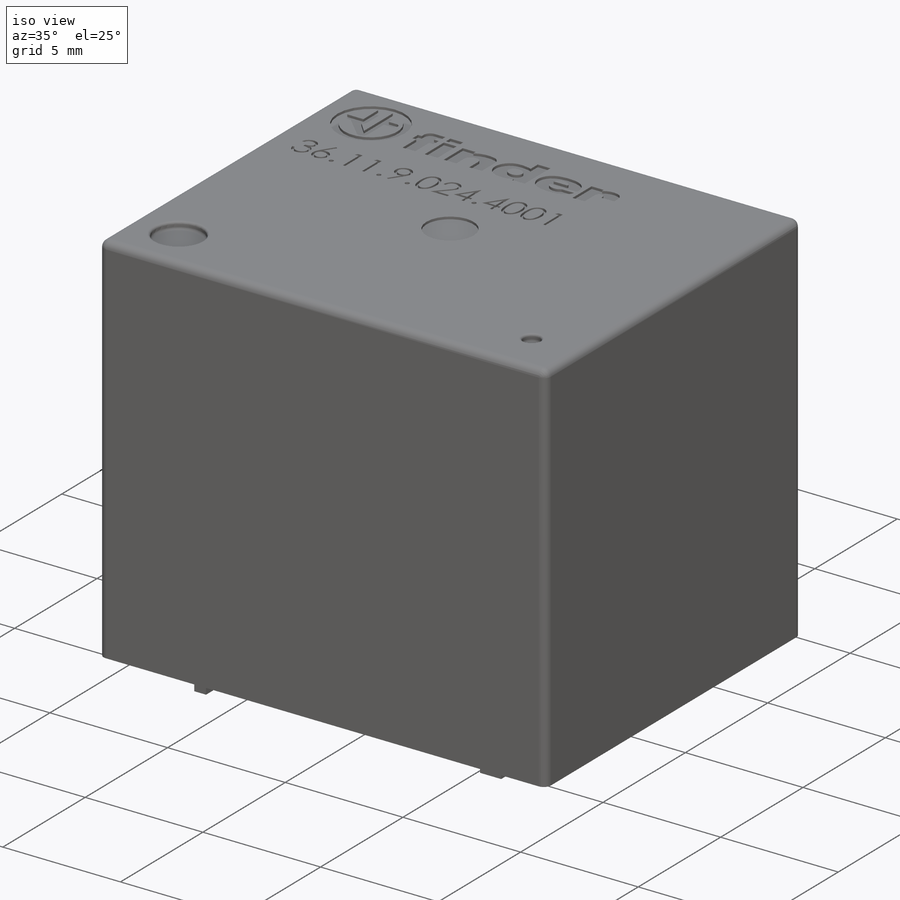
[diagram: iso view]
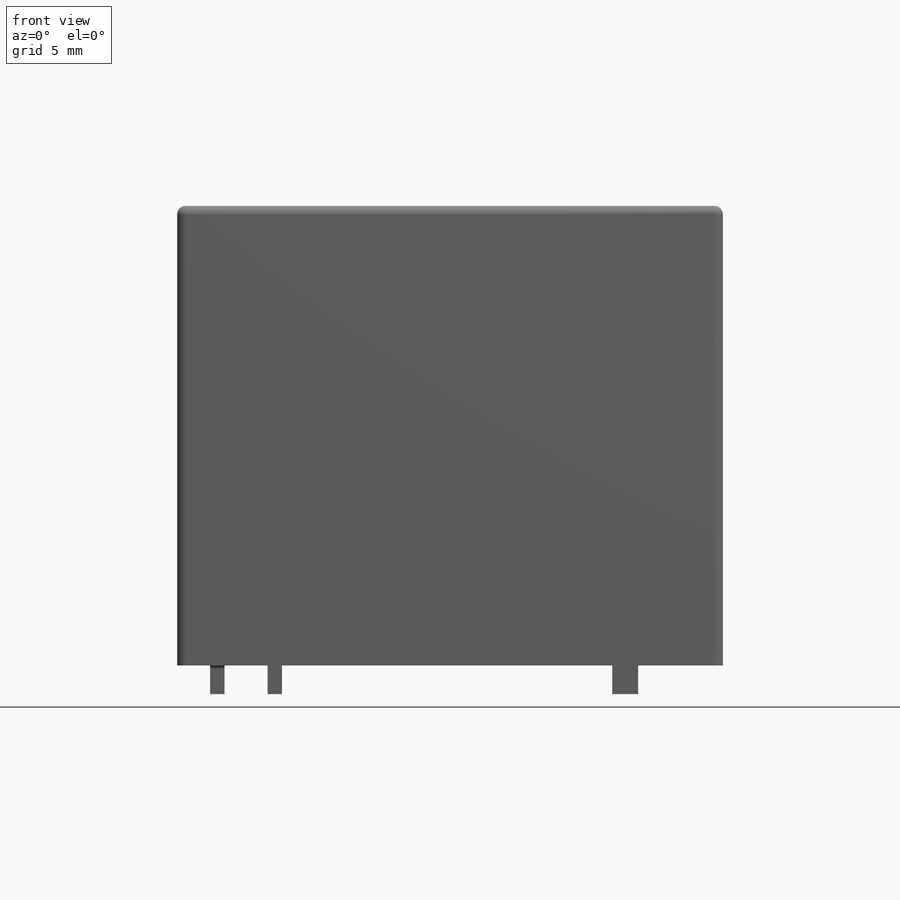
[diagram: front view]
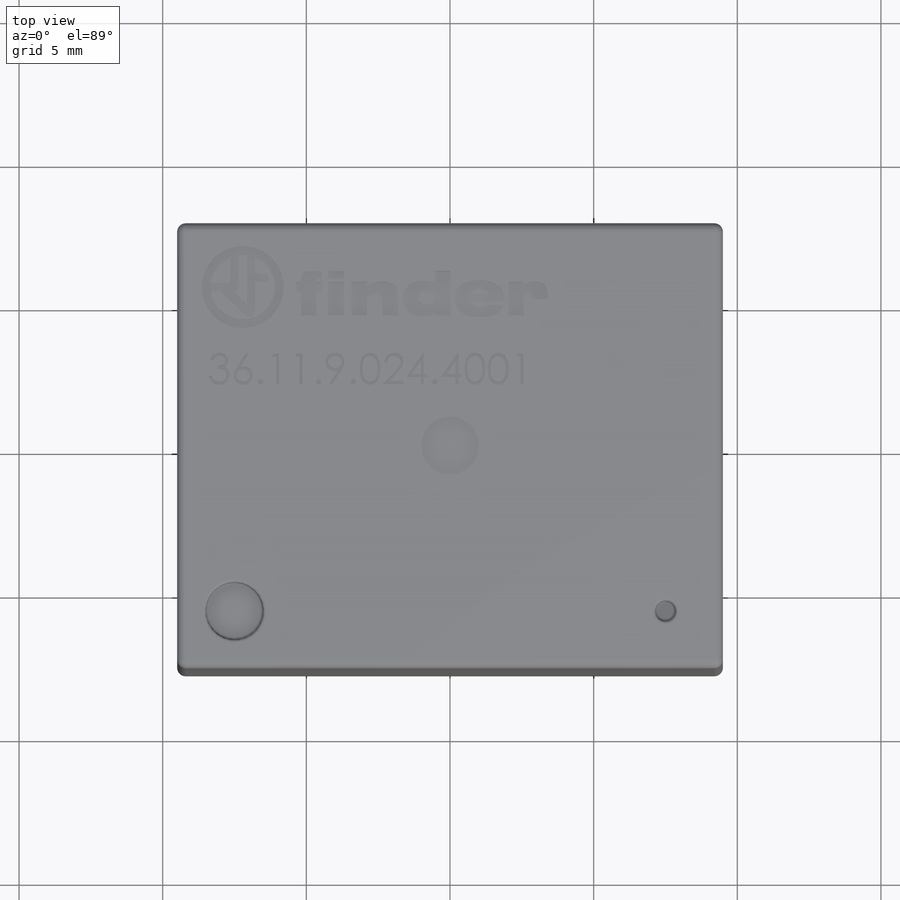
[diagram: top view]
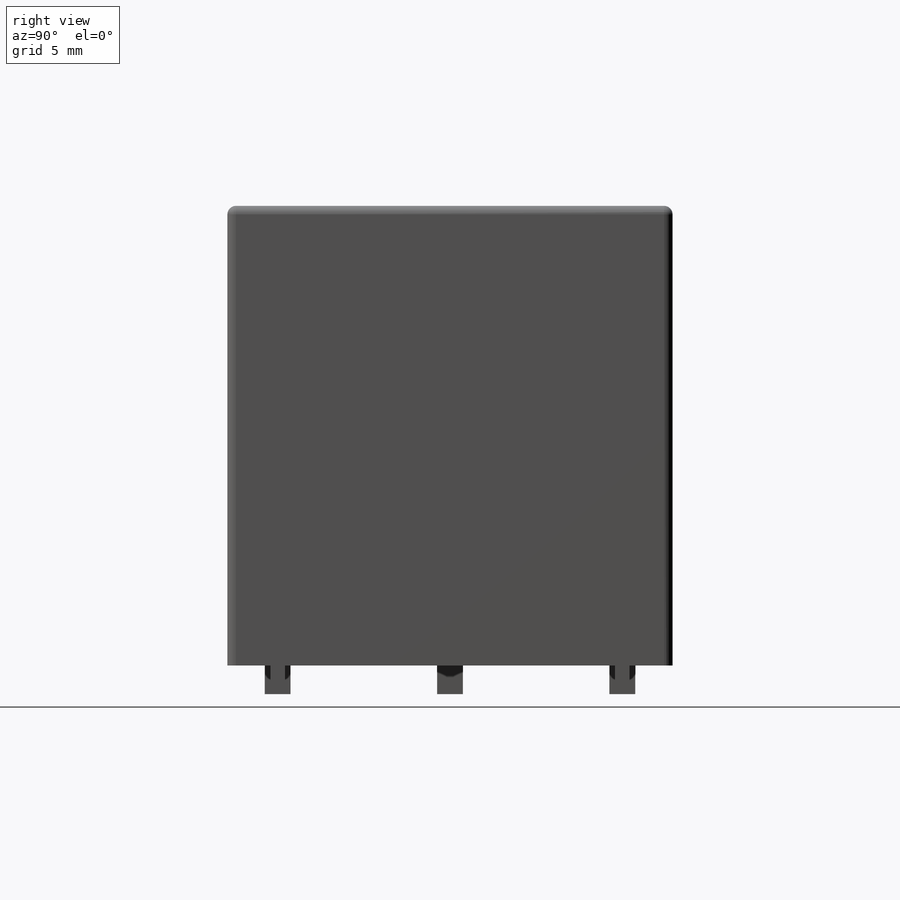
[diagram: right view]
SOLIDWORKS PART (.sldprt)
format: sldprt  version: not decoded by parser v0  size: 604,672 bytes
history: native  units: mm
features: sketch x6, cut_extrude x4, extrude x2, fillet x2, material x1 (+16 scaffold rows collapsed)
feature tree (31):
  scaffold x16  (default folders/planes/origin — collapsed)
  material  "Material <not specified>"
  sketch  "Sketch1"  dims[D1=19.0mm D2=15.5mm]
  extrude  "Boss-Extrude1"  Depth=16mm
  sketch  "Sketch3"  dims[c1.D1=6.0mm c1.D2=6.0mm c1.D3=2.0mm c1.D4=12.2mm c1.D5=12.0mm c1.D6=0.5mm c1.D7=0.9mm c1.D8=3.4mm c1.D9=3.4mm c2.D2=6.0mm c2.D5=1.5mm]
  extrude  "Boss-Extrude2"  Depth=1mm
  fillet  "Fillet1"  Radius=0.3mm
  sketch  "Sketch4"  dims[D1=2.0mm D2=0.7mm D3=2.0mm D4=2.0mm D5=2.0mm]
  cut_extrude  "Cut-Extrude1"  Depth=0.3mm
  fillet  "Fillet2"  Radius=0.1mm
  sketch  "Sketch5"  dims[D1=2.0mm]
  cut_extrude  "Cut-Extrude2"  Depth=0.1mm
  sketch  "Sketch6"
  cut_extrude  "Cut-Extrude3"  Depth=0.1mm
  sketch  "Sketch7"
  cut_extrude  "Cut-Extrude4"  Depth=0.1mm
decode coverage: 12 of 14 modeling features carry decoded parameters
note: suppression state not decoded; provenance and decode notes live in map.json
